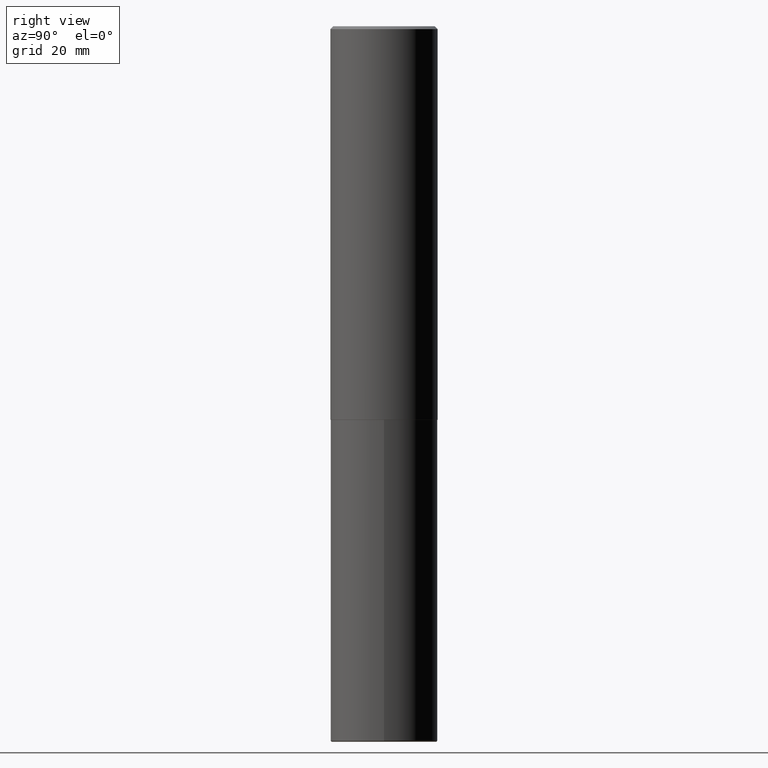
[diagram: clean part render]
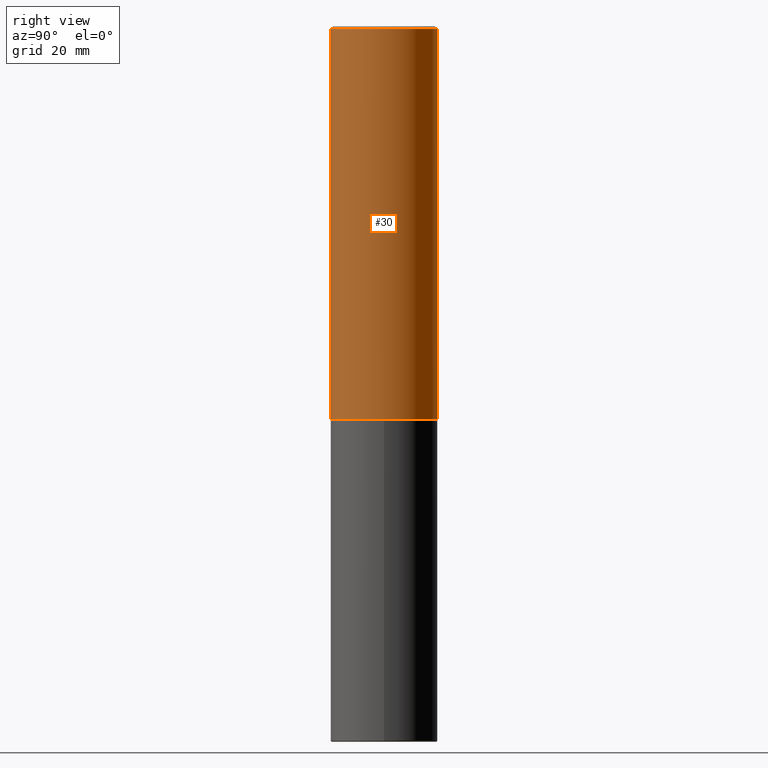
[diagram: same view with one face highlighted and labeled with its STEP entity id]
A machine part, right view. The second image highlights one B-rep face of the part: STEP entity #30.
In plain terms, the highlighted cylindrical surface (partial cylindrical patch) has radius 9.525 mm, axis along (-0, 0, 1).
Its self-contained STEP definition (entity closure, byte-faithful):
#24 = CIRCLE ( 'NONE', #114, 0.3750000000000000555 ) ;
#30 = ADVANCED_FACE ( 'NONE', ( #207 ), #343, .T. ) ;
#38 = AXIS2_PLACEMENT_3D ( 'NONE', #205, #177, #175 ) ;
#43 = ORIENTED_EDGE ( 'NONE', *, *, #354, .T. ) ;
#56 = LINE ( 'NONE', #181, #58 ) ;
#58 = VECTOR ( 'NONE', #396, 39.37007874015748143 ) ;
#94 = DIRECTION ( 'NONE',  ( -6.982962677686265922E-15, -1.000000000000000000, 3.494488891895536035E-15 ) ) ;
#104 = CARTESIAN_POINT ( 'NONE',  ( 0.000000000000000000, 0.000000000000000000, 0.000000000000000000 ) ) ;
#107 = DIRECTION ( 'NONE',  ( -2.446040391741596606E-29, 3.490662795793665557E-15, 1.000000000000000000 ) ) ;
#114 = AXIS2_PLACEMENT_3D ( 'NONE', #341, #303, #94 ) ;
#131 = DIRECTION ( 'NONE',  ( -2.446040391741596606E-29, 3.490662795793665557E-15, 1.000000000000000000 ) ) ;
#138 = CARTESIAN_POINT ( 'NONE',  ( -2.618611004132351594E-15, -0.3750000000000002220, 1.308998548422625521E-15 ) ) ;
#142 = CARTESIAN_POINT ( 'NONE',  ( -2.572686749164323547E-15, -0.3750000000000001110, -0.01999999999999877570 ) ) ;
#143 = VERTEX_POINT ( 'NONE', #155 ) ;
#154 = EDGE_CURVE ( 'NONE', #143, #294, #405, .T. ) ;
#155 = CARTESIAN_POINT ( 'NONE',  ( -2.618611004132284935E-15, -0.3750000000000099920, -2.748999999999999222 ) ) ;
#159 = EDGE_LOOP ( 'NONE', ( #297, #43, #328, #395 ) ) ;
#175 = DIRECTION ( 'NONE',  ( -6.982962677686265922E-15, -1.000000000000000000, 2.913971193241877611E-15 ) ) ;
#177 = DIRECTION ( 'NONE',  ( -2.446040391741596606E-29, 3.490662795793665557E-15, 1.000000000000000000 ) ) ;
#181 = CARTESIAN_POINT ( 'NONE',  ( 2.664535259100376880E-15, 0.3750000000000002220, -1.308998548422625521E-15 ) ) ;
#183 = DIRECTION ( 'NONE',  ( -6.982962677686266711E-15, -1.000000000000000000, 3.490662795793665951E-15 ) ) ;
#205 = CARTESIAN_POINT ( 'NONE',  ( 6.724165036897648492E-29, -9.595832025636787455E-15, -2.749000000000000110 ) ) ;
#207 = FACE_OUTER_BOUND ( 'NONE', #159, .T. ) ;
#242 = CARTESIAN_POINT ( 'NONE',  ( 2.618611004132350411E-15, 0.3749999999999999445, -0.02000000000000139513 ) ) ;
#256 = VERTEX_POINT ( 'NONE', #310 ) ;
#294 = VERTEX_POINT ( 'NONE', #142 ) ;
#297 = ORIENTED_EDGE ( 'NONE', *, *, #327, .T. ) ;
#303 = DIRECTION ( 'NONE',  ( -2.446040391741596606E-29, 3.490662795793665557E-15, 1.000000000000000000 ) ) ;
#308 = CIRCLE ( 'NONE', #38, 0.3750000000000003886 ) ;
#310 = CARTESIAN_POINT ( 'NONE',  ( 2.664535259100411196E-15, 0.3749999999999907296, -2.749000000000000998 ) ) ;
#327 = EDGE_CURVE ( 'NONE', #143, #256, #308, .T. ) ;
#328 = ORIENTED_EDGE ( 'NONE', *, *, #329, .F. ) ;
#329 = EDGE_CURVE ( 'NONE', #294, #397, #24, .T. ) ;
#341 = CARTESIAN_POINT ( 'NONE',  ( 4.892080783483214581E-31, -6.981325591587361238E-17, -0.02000000000000008715 ) ) ;
#343 = CYLINDRICAL_SURFACE ( 'NONE', #347, 0.3750000000000002220 ) ;
#347 = AXIS2_PLACEMENT_3D ( 'NONE', #104, #107, #183 ) ;
#354 = EDGE_CURVE ( 'NONE', #256, #397, #56, .T. ) ;
#392 = VECTOR ( 'NONE', #131, 39.37007874015748143 ) ;
#395 = ORIENTED_EDGE ( 'NONE', *, *, #154, .F. ) ;
#396 = DIRECTION ( 'NONE',  ( -2.446040391741596606E-29, 3.490662795793665557E-15, 1.000000000000000000 ) ) ;
#397 = VERTEX_POINT ( 'NONE', #242 ) ;
#405 = LINE ( 'NONE', #138, #392 ) ;